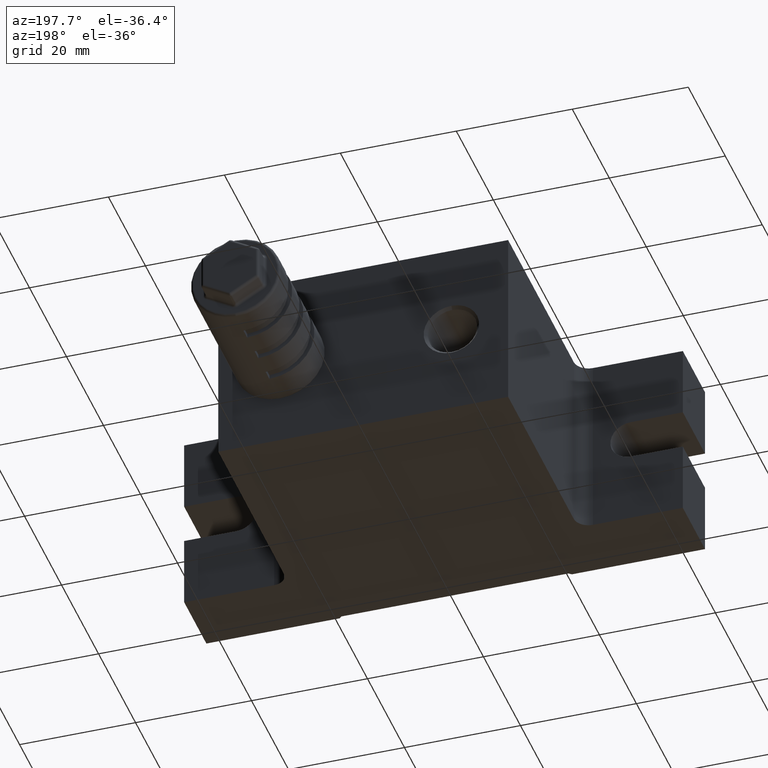
[diagram: clean part render]
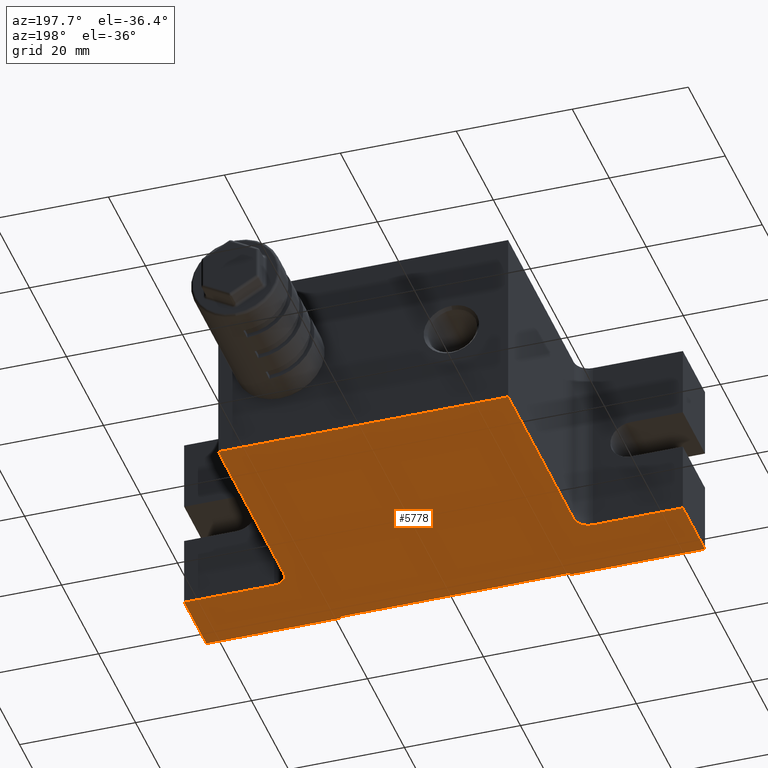
[diagram: same view with one face highlighted and labeled with its STEP entity id]
A machine part, auxiliary view. The second image highlights one B-rep face of the part: STEP entity #5778.
In plain terms, the highlighted planar face has unit normal (0, 0, -1).
Its self-contained STEP definition (entity closure, byte-faithful):
#162 = VECTOR ( 'NONE', #8375, 1000.000000000000000 ) ;
#182 = ORIENTED_EDGE ( 'NONE', *, *, #7005, .T. ) ;
#230 = CARTESIAN_POINT ( 'NONE',  ( 43.00000000000000700, -13.00000000000000500, -16.00000000000000000 ) ) ;
#309 = CARTESIAN_POINT ( 'NONE',  ( -27.49999999999998600, -10.50000000000000200, -16.00000000000000000 ) ) ;
#346 = VECTOR ( 'NONE', #9554, 1000.000000000000100 ) ;
#348 = DIRECTION ( 'NONE',  ( -1.000000000000000000, 0.0000000000000000000, 0.0000000000000000000 ) ) ;
#506 = LINE ( 'NONE', #2304, #8207 ) ;
#586 = CARTESIAN_POINT ( 'NONE',  ( 25.00000000000001400, 24.99999999999999600, -16.00000000000000000 ) ) ;
#666 = VERTEX_POINT ( 'NONE', #3613 ) ;
#779 = FACE_OUTER_BOUND ( 'NONE', #7534, .T. ) ;
#1005 = VECTOR ( 'NONE', #2250, 1000.000000000000000 ) ;
#1019 = AXIS2_PLACEMENT_3D ( 'NONE', #8607, #7095, #348 ) ;
#1186 = CARTESIAN_POINT ( 'NONE',  ( -27.49999999999998600, -13.00000000000000500, -16.00000000000000000 ) ) ;
#1472 = DIRECTION ( 'NONE',  ( -0.7071067811865597900, 0.7071067811865352500, -0.0000000000000000000 ) ) ;
#1537 = CARTESIAN_POINT ( 'NONE',  ( -42.99999999999998600, 25.00000000000000000, -16.00000000000000000 ) ) ;
#1723 = LINE ( 'NONE', #9122, #9461 ) ;
#1923 = EDGE_CURVE ( 'NONE', #8227, #8754, #1723, .T. ) ;
#1972 = VERTEX_POINT ( 'NONE', #6020 ) ;
#2196 = ORIENTED_EDGE ( 'NONE', *, *, #8352, .F. ) ;
#2211 = PLANE ( 'NONE',  #6095 ) ;
#2250 = DIRECTION ( 'NONE',  ( -1.000000000000000000, -0.0000000000000000000, -0.0000000000000000000 ) ) ;
#2304 = CARTESIAN_POINT ( 'NONE',  ( 43.00000000000000700, -25.00000000000000000, -16.00000000000000000 ) ) ;
#2307 = VERTEX_POINT ( 'NONE', #9035 ) ;
#2334 = AXIS2_PLACEMENT_3D ( 'NONE', #309, #4053, #7052 ) ;
#2341 = DIRECTION ( 'NONE',  ( 0.0000000000000000000, 1.000000000000000000, 0.0000000000000000000 ) ) ;
#2347 = ORIENTED_EDGE ( 'NONE', *, *, #5628, .T. ) ;
#2348 = LINE ( 'NONE', #3633, #8786 ) ;
#2443 = EDGE_CURVE ( 'NONE', #2307, #666, #2715, .T. ) ;
#2680 = ORIENTED_EDGE ( 'NONE', *, *, #9389, .T. ) ;
#2715 = LINE ( 'NONE', #7623, #9184 ) ;
#2970 = LINE ( 'NONE', #8321, #1005 ) ;
#3009 = DIRECTION ( 'NONE',  ( -1.000000000000000000, 0.0000000000000000000, -0.0000000000000000000 ) ) ;
#3100 = CARTESIAN_POINT ( 'NONE',  ( 43.00000000000000700, -13.00000000000000500, -16.00000000000000000 ) ) ;
#3265 = VECTOR ( 'NONE', #4894, 1000.000000000000000 ) ;
#3304 = CARTESIAN_POINT ( 'NONE',  ( -42.99999999999998600, -25.00000000000000000, -16.00000000000000000 ) ) ;
#3442 = ORIENTED_EDGE ( 'NONE', *, *, #6827, .F. ) ;
#3501 = LINE ( 'NONE', #230, #162 ) ;
#3538 = EDGE_CURVE ( 'NONE', #8227, #1972, #2970, .T. ) ;
#3613 = CARTESIAN_POINT ( 'NONE',  ( -19.59999999999998700, -24.60000000000000100, -16.00000000000000000 ) ) ;
#3633 = CARTESIAN_POINT ( 'NONE',  ( -42.99999999999998600, -25.00000000000000000, -16.00000000000000000 ) ) ;
#3697 = DIRECTION ( 'NONE',  ( -0.0000000000000000000, -1.000000000000000000, -0.0000000000000000000 ) ) ;
#3781 = ORIENTED_EDGE ( 'NONE', *, *, #8093, .F. ) ;
#3799 = VERTEX_POINT ( 'NONE', #5108 ) ;
#3949 = DIRECTION ( 'NONE',  ( -1.000000000000000000, -8.673617379884035500E-017, -0.0000000000000000000 ) ) ;
#4000 = VECTOR ( 'NONE', #8145, 1000.000000000000000 ) ;
#4004 = CARTESIAN_POINT ( 'NONE',  ( -24.99999999999998600, 25.00000000000000000, -16.00000000000000000 ) ) ;
#4053 = DIRECTION ( 'NONE',  ( -0.0000000000000000000, -0.0000000000000000000, 1.000000000000000000 ) ) ;
#4091 = EDGE_CURVE ( 'NONE', #6616, #8140, #5037, .T. ) ;
#4321 = CARTESIAN_POINT ( 'NONE',  ( 43.00000000000000700, -25.00000000000000000, -16.00000000000000000 ) ) ;
#4592 = DIRECTION ( 'NONE',  ( 0.0000000000000000000, -1.000000000000000000, 0.0000000000000000000 ) ) ;
#4733 = VERTEX_POINT ( 'NONE', #3100 ) ;
#4753 = LINE ( 'NONE', #6499, #346 ) ;
#4814 = EDGE_CURVE ( 'NONE', #8140, #1972, #5486, .T. ) ;
#4843 = VECTOR ( 'NONE', #8431, 1000.000000000000000 ) ;
#4894 = DIRECTION ( 'NONE',  ( -0.0000000000000000000, 1.000000000000000000, -0.0000000000000000000 ) ) ;
#5037 = CIRCLE ( 'NONE', #2334, 2.499999999999998700 ) ;
#5058 = EDGE_CURVE ( 'NONE', #6236, #2307, #5119, .T. ) ;
#5081 = VERTEX_POINT ( 'NONE', #9633 ) ;
#5108 = CARTESIAN_POINT ( 'NONE',  ( -42.99999999999998600, -25.00000000000000000, -16.00000000000000000 ) ) ;
#5119 = LINE ( 'NONE', #5930, #5466 ) ;
#5305 = VERTEX_POINT ( 'NONE', #6870 ) ;
#5466 = VECTOR ( 'NONE', #1472, 1000.000000000000000 ) ;
#5486 = LINE ( 'NONE', #4004, #3265 ) ;
#5578 = ORIENTED_EDGE ( 'NONE', *, *, #9251, .T. ) ;
#5579 = ORIENTED_EDGE ( 'NONE', *, *, #2443, .T. ) ;
#5628 = EDGE_CURVE ( 'NONE', #8754, #5081, #8742, .T. ) ;
#5778 = ADVANCED_FACE ( 'NONE', ( #779 ), #2211, .T. ) ;
#5793 = ORIENTED_EDGE ( 'NONE', *, *, #3538, .F. ) ;
#5930 = CARTESIAN_POINT ( 'NONE',  ( 19.60000000000000500, -24.59999999999999800, -16.00000000000000000 ) ) ;
#6020 = CARTESIAN_POINT ( 'NONE',  ( -24.99999999999998600, 25.00000000000000000, -16.00000000000000000 ) ) ;
#6095 = AXIS2_PLACEMENT_3D ( 'NONE', #1537, #6720, #3009 ) ;
#6236 = VERTEX_POINT ( 'NONE', #6732 ) ;
#6499 = CARTESIAN_POINT ( 'NONE',  ( -19.99999999999998200, -24.99999999999999600, -16.00000000000000000 ) ) ;
#6616 = VERTEX_POINT ( 'NONE', #1186 ) ;
#6720 = DIRECTION ( 'NONE',  ( 0.0000000000000000000, 0.0000000000000000000, -1.000000000000000000 ) ) ;
#6732 = CARTESIAN_POINT ( 'NONE',  ( 20.00000000000001800, -24.99999999999999600, -16.00000000000000000 ) ) ;
#6736 = VECTOR ( 'NONE', #7828, 1000.000000000000000 ) ;
#6827 = EDGE_CURVE ( 'NONE', #7293, #4733, #506, .T. ) ;
#6858 = VERTEX_POINT ( 'NONE', #7601 ) ;
#6870 = CARTESIAN_POINT ( 'NONE',  ( -19.99999999999998200, -25.00000000000000000, -16.00000000000000000 ) ) ;
#6993 = LINE ( 'NONE', #9390, #6736 ) ;
#7005 = EDGE_CURVE ( 'NONE', #5081, #4733, #3501, .T. ) ;
#7052 = DIRECTION ( 'NONE',  ( -1.000000000000000000, 0.0000000000000000000, 0.0000000000000000000 ) ) ;
#7095 = DIRECTION ( 'NONE',  ( -0.0000000000000000000, -0.0000000000000000000, 1.000000000000000000 ) ) ;
#7153 = ORIENTED_EDGE ( 'NONE', *, *, #4091, .T. ) ;
#7172 = ORIENTED_EDGE ( 'NONE', *, *, #5058, .T. ) ;
#7275 = EDGE_CURVE ( 'NONE', #6858, #3799, #2348, .T. ) ;
#7293 = VERTEX_POINT ( 'NONE', #4321 ) ;
#7401 = CARTESIAN_POINT ( 'NONE',  ( -42.99999999999998600, -25.00000000000000000, -16.00000000000000000 ) ) ;
#7534 = EDGE_LOOP ( 'NONE', ( #5579, #2680, #2196, #8243, #5578, #7153, #9192, #5793, #7912, #2347, #182, #3442, #3781, #7172 ) ) ;
#7601 = CARTESIAN_POINT ( 'NONE',  ( -42.99999999999998600, -13.00000000000000500, -16.00000000000000000 ) ) ;
#7623 = CARTESIAN_POINT ( 'NONE',  ( -19.99999999999998200, -24.60000000000000100, -16.00000000000000000 ) ) ;
#7828 = DIRECTION ( 'NONE',  ( 1.000000000000000000, 0.0000000000000000000, 0.0000000000000000000 ) ) ;
#7867 = CARTESIAN_POINT ( 'NONE',  ( 25.00000000000001400, -10.50000000000000500, -16.00000000000000000 ) ) ;
#7912 = ORIENTED_EDGE ( 'NONE', *, *, #1923, .T. ) ;
#8093 = EDGE_CURVE ( 'NONE', #6236, #7293, #8733, .T. ) ;
#8140 = VERTEX_POINT ( 'NONE', #9466 ) ;
#8145 = DIRECTION ( 'NONE',  ( 1.000000000000000000, 0.0000000000000000000, 0.0000000000000000000 ) ) ;
#8207 = VECTOR ( 'NONE', #2341, 1000.000000000000000 ) ;
#8227 = VERTEX_POINT ( 'NONE', #586 ) ;
#8243 = ORIENTED_EDGE ( 'NONE', *, *, #7275, .F. ) ;
#8321 = CARTESIAN_POINT ( 'NONE',  ( -42.99999999999998600, 25.00000000000000000, -16.00000000000000000 ) ) ;
#8352 = EDGE_CURVE ( 'NONE', #3799, #5305, #9571, .T. ) ;
#8375 = DIRECTION ( 'NONE',  ( 1.000000000000000000, -0.0000000000000000000, -0.0000000000000000000 ) ) ;
#8431 = DIRECTION ( 'NONE',  ( 1.000000000000000000, 0.0000000000000000000, 0.0000000000000000000 ) ) ;
#8607 = CARTESIAN_POINT ( 'NONE',  ( 27.50000000000001400, -10.50000000000000400, -16.00000000000000000 ) ) ;
#8733 = LINE ( 'NONE', #3304, #4843 ) ;
#8742 = CIRCLE ( 'NONE', #1019, 2.499999999999998700 ) ;
#8754 = VERTEX_POINT ( 'NONE', #7867 ) ;
#8786 = VECTOR ( 'NONE', #3697, 1000.000000000000000 ) ;
#9035 = CARTESIAN_POINT ( 'NONE',  ( 19.60000000000000500, -24.59999999999999800, -16.00000000000000000 ) ) ;
#9122 = CARTESIAN_POINT ( 'NONE',  ( 25.00000000000001400, 24.99999999999999600, -16.00000000000000000 ) ) ;
#9184 = VECTOR ( 'NONE', #3949, 1000.000000000000000 ) ;
#9192 = ORIENTED_EDGE ( 'NONE', *, *, #4814, .T. ) ;
#9251 = EDGE_CURVE ( 'NONE', #6858, #6616, #6993, .T. ) ;
#9389 = EDGE_CURVE ( 'NONE', #666, #5305, #4753, .T. ) ;
#9390 = CARTESIAN_POINT ( 'NONE',  ( -42.99999999999998600, -13.00000000000000500, -16.00000000000000000 ) ) ;
#9461 = VECTOR ( 'NONE', #4592, 1000.000000000000000 ) ;
#9466 = CARTESIAN_POINT ( 'NONE',  ( -24.99999999999998600, -10.50000000000000200, -16.00000000000000000 ) ) ;
#9554 = DIRECTION ( 'NONE',  ( -0.7071067811865474600, -0.7071067811865474600, -0.0000000000000000000 ) ) ;
#9571 = LINE ( 'NONE', #7401, #4000 ) ;
#9633 = CARTESIAN_POINT ( 'NONE',  ( 27.50000000000001400, -13.00000000000000500, -16.00000000000000000 ) ) ;